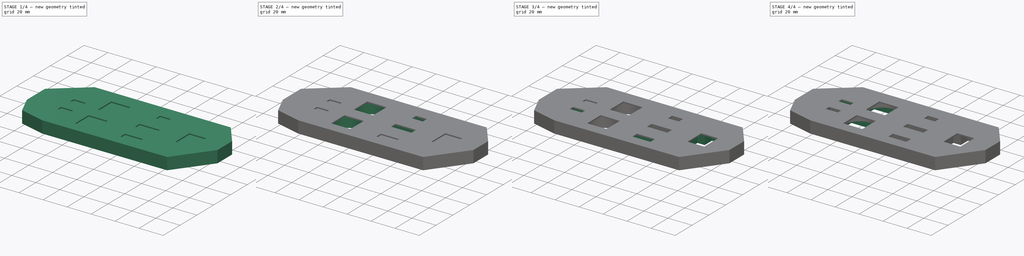
[diagram: build sequence overview — one tinted view per stage of 4, left to right]
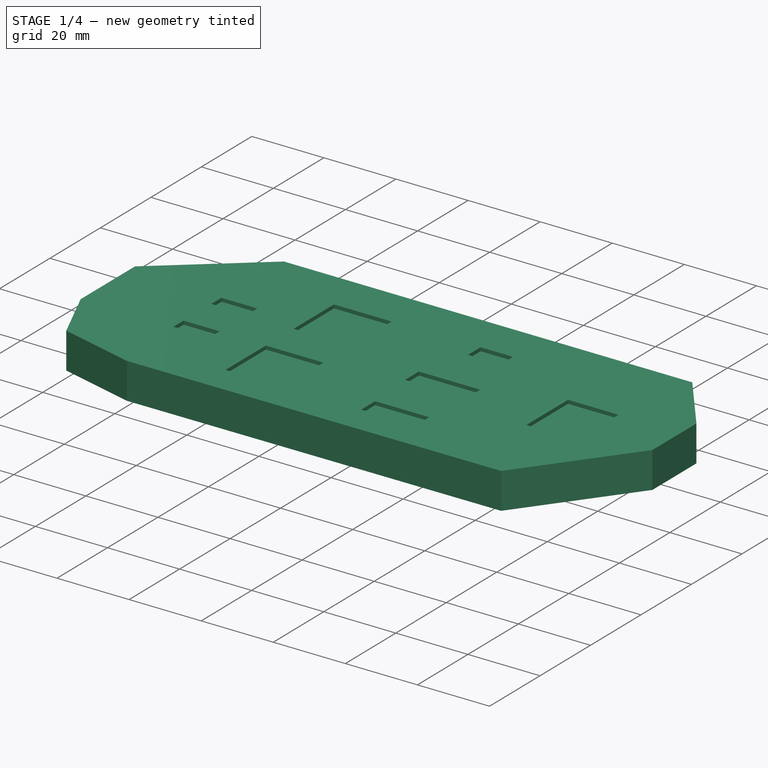
[diagram: stage 1 of 4 — iso view after this stage's code; geometry added in this stage tinted green]
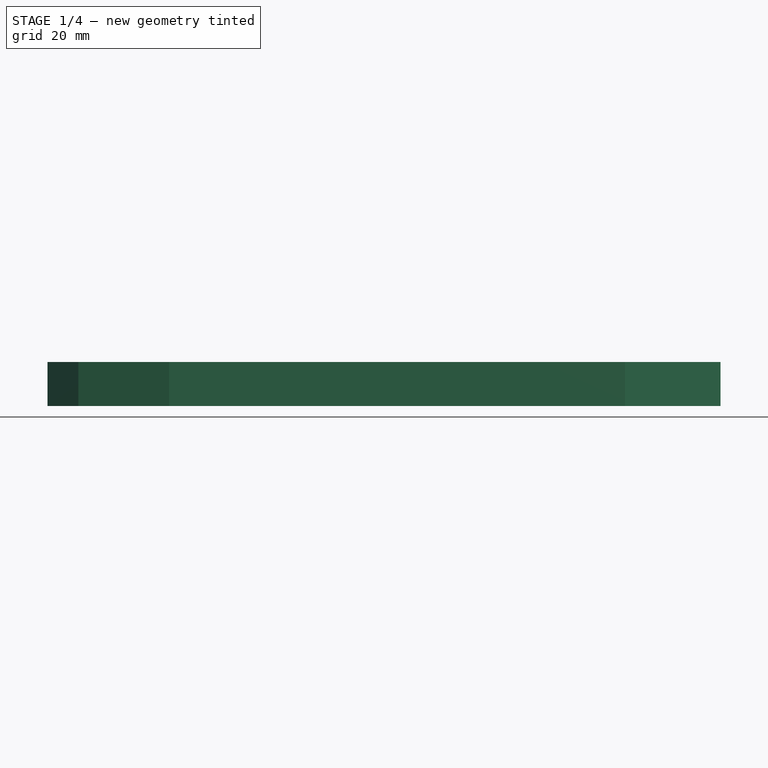
[diagram: stage 1 of 4 — front view after this stage's code; geometry added in this stage tinted green]
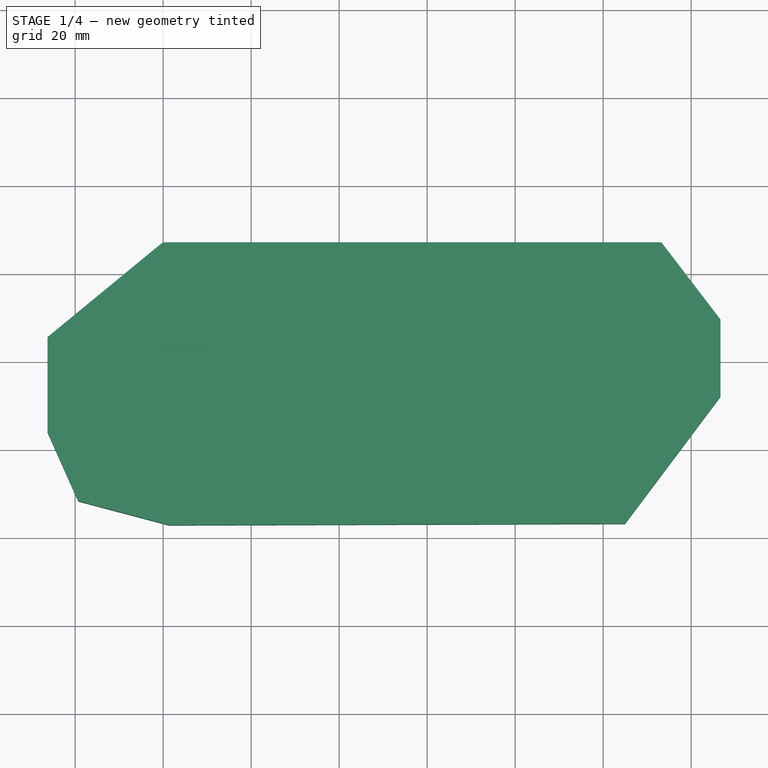
[diagram: stage 1 of 4 — top view after this stage's code; geometry added in this stage tinted green]
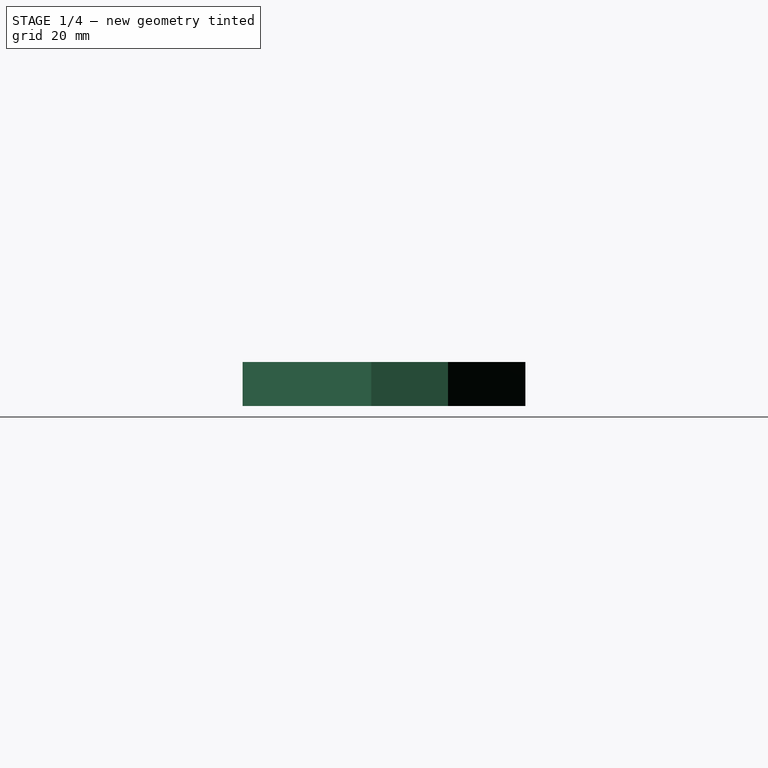
[diagram: stage 1 of 4 — right view after this stage's code; geometry added in this stage tinted green]
FCSTD DOCUMENT  (FreeCAD 2021.717R24301 +3842 (Git))
Label: IO Shield 1-IO ShieldPlate-rev8
License: All rights reserved
LicenseURL: http://en.wikipedia.org/wiki/All_rights_reserved
objects: Sketcher::SketchObject×10, PartDesign::Pocket×9, PartDesign::Pad×1, PartDesign::Body×1, App::Part×1
note: 41 computed .brp shape members not serialized (recipe doc carries the construction recipe); baked Part::Feature solids carry a one-line shape summary decoded from their .brp

FEATURE [Sketcher::SketchObject] Sketch
  FullyConstrained = true
  MapMode = 2
  Support = -> [XY_Plane]
  sketch-geometry (10):
    g0: LineSegment StartX=113.242 StartY=7.13634 StartZ=0 EndX=-0.047754 EndY=7.13634 EndZ=0
    g1: LineSegment StartX=-0.047754 StartY=7.13634 StartZ=0 EndX=-26.2823 EndY=-14.4283 EndZ=0
    g2: LineSegment StartX=-19.2631 StartY=-51.6818 StartZ=0 EndX=1.36096 EndY=-57.1386 EndZ=0
    g3: LineSegment StartX=1.36096 StartY=-57.1386 StartZ=0 EndX=104.98 EndY=-56.818 EndZ=0
    g4: LineSegment StartX=104.98 StartY=-56.818 StartZ=0 EndX=126.693 EndY=-27.8897 EndZ=0
    g5: LineSegment StartX=126.693 StartY=-27.8897 StartZ=0 EndX=126.693 EndY=-10.4497 EndZ=0
    g6: GeomPoint [constr] X=-19.2631 Y=-51.6818 Z=0
    g7: LineSegment StartX=-26.2823 StartY=-35.9683 StartZ=0 EndX=-19.2631 EndY=-51.6818 EndZ=0
    g8: LineSegment StartX=113.242 StartY=7.13634 StartZ=0 EndX=126.693 EndY=-10.4497 EndZ=0
    g9: LineSegment StartX=-26.2823 StartY=-14.4283 StartZ=0 EndX=-26.2823 EndY=-35.9683 EndZ=0
  constraints (29):
    c: Horizontal(g0)
    c: Coincident(g3,g2)
    c: Coincident(g4,g3)
    c: Coincident(g5,g4)
    c: Distance(g3) = 103.62
    c: Distance(g4) = 36.17
    c: Coincident(g0,g1)
    c: DistanceX(g0) = -0.047754
    c: DistanceY(g0) = 7.13634
    c: Angle(g1,g0) = 2.45358
    c: Angle(g5,g4) = 2.49774
    c: PointOnObject(g6,g2)
    c: Coincident(g7,g6)
    c: PointOnObject(g2,g7)
    c: Coincident(g0,g8)
    c: Coincident(g5,g8)
    c: Angle(g2,g7) = 2.24955
    c: Angle(g7,g1) = 1.8387
    c: Distance(g8) = 22.14
    c: Distance(g5) = 17.44
    c: Angle(g8,g5) = 2.48866
    c: DistanceX(g0,g0) = 113.29
    c: Angle(g8) = -0.917869
    c: Vertical(g9)
    c: Coincident(g1,g9)
    c: Coincident(g7,g9)
    c: Distance(g9) = 21.54
    c: Distance(g1) = 33.96
    c: Distance(g7) = 17.21
FEATURE [PartDesign::Pad] Pad  label="Plate"
  ClaimChildren = false
  Direction = (1,1,1)
  Fit = 0
  FitJoin = 0
  InnerFit = 0
  InnerFitJoin = 0
  InnerTaperAngle = 0
  InnerTaperAngleRev = 0
  Length = 10
  Length2 = 100
  Linearize = true
  NewSolid = false
  Profile = -> Sketch
  Suppress = false
  Type = 0
  _ProfileBasedVersion = 1
FEATURE [Sketcher::SketchObject] Sketch001
  FullyConstrained = true
  MapMode = 5
  Placement = pos=(0,0,10) rot=(0,0,1;0rad)
  Support = -> [Pad]
  sketch-geometry (32):
    g0: LineSegment StartX=-0.5 StartY=-17 StartZ=0 EndX=9.5 EndY=-17 EndZ=0
    g1: LineSegment StartX=9.5 StartY=-17 StartZ=0 EndX=9.5 EndY=-21 EndZ=0
    g2: LineSegment StartX=9.5 StartY=-21 StartZ=0 EndX=-0.5 EndY=-21 EndZ=0
    g3: LineSegment StartX=-0.5 StartY=-21 StartZ=0 EndX=-0.5 EndY=-17 EndZ=0
    g4: LineSegment StartX=-0.5 StartY=-32 StartZ=0 EndX=9.5 EndY=-32 EndZ=0
    g5: LineSegment StartX=9.5 StartY=-32 StartZ=0 EndX=9.5 EndY=-36 EndZ=0
    g6: LineSegment StartX=9.5 StartY=-36 StartZ=0 EndX=-0.5 EndY=-36 EndZ=0
    g7: LineSegment StartX=-0.5 StartY=-36 StartZ=0 EndX=-0.5 EndY=-32 EndZ=0
    g8: LineSegment StartX=60 StartY=-42.5 StartZ=0 EndX=75 EndY=-42.5 EndZ=0
    g9: LineSegment StartX=60 StartY=-42.5 StartZ=0 EndX=60 EndY=-48 EndZ=0
    g10: LineSegment StartX=75 StartY=-42.5 StartZ=0 EndX=75 EndY=-48 EndZ=0
    g11: LineSegment StartX=60 StartY=-48 StartZ=0 EndX=75 EndY=-48 EndZ=0
    g12: LineSegment StartX=63 StartY=-5 StartZ=0 EndX=72 EndY=-5 EndZ=0
    g13: LineSegment StartX=72 StartY=-5 StartZ=0 EndX=72 EndY=-10 EndZ=0
    g14: LineSegment StartX=72 StartY=-10 StartZ=0 EndX=63 EndY=-10 EndZ=0
    g15: LineSegment StartX=63 StartY=-10 StartZ=0 EndX=63 EndY=-5 EndZ=0
    g16: LineSegment StartX=95.5 StartY=-16.75 StartZ=0 EndX=109.5 EndY=-16.75 EndZ=0
    g17: LineSegment StartX=109.5 StartY=-16.75 StartZ=0 EndX=109.5 EndY=-33.25 EndZ=0
    g18: LineSegment StartX=109.5 StartY=-33.25 StartZ=0 EndX=95.5 EndY=-33.25 EndZ=0
    g19: LineSegment StartX=95.5 StartY=-33.25 StartZ=0 EndX=95.5 EndY=-16.75 EndZ=0
    g20: LineSegment StartX=22.5 StartY=-5.25 StartZ=0 EndX=38.5 EndY=-5.25 EndZ=0
    g21: LineSegment StartX=38.5 StartY=-5.25 StartZ=0 EndX=38.5 EndY=-21.25 EndZ=0
    g22: LineSegment StartX=38.5 StartY=-21.25 StartZ=0 EndX=22.5 EndY=-21.25 EndZ=0
    g23: LineSegment StartX=22.5 StartY=-21.25 StartZ=0 EndX=22.5 EndY=-5.25 EndZ=0
    g24: LineSegment StartX=22.5 StartY=-32.25 StartZ=0 EndX=38.5 EndY=-32.25 EndZ=0
    g25: LineSegment StartX=38.5 StartY=-32.25 StartZ=0 EndX=38.5 EndY=-48.25 EndZ=0
    g26: LineSegment StartX=38.5 StartY=-48.25 StartZ=0 EndX=22.5 EndY=-48.25 EndZ=0
    g27: LineSegment StartX=22.5 StartY=-48.25 StartZ=0 EndX=22.5 EndY=-32.25 EndZ=0
    g28: LineSegment StartX=59 StartY=-23.75 StartZ=0 EndX=76 EndY=-23.75 EndZ=0
    g29: LineSegment StartX=76 StartY=-23.75 StartZ=0 EndX=76 EndY=-29.25 EndZ=0
    g30: LineSegment StartX=76 StartY=-29.25 StartZ=0 EndX=59 EndY=-29.25 EndZ=0
    g31: LineSegment StartX=59 StartY=-29.25 StartZ=0 EndX=59 EndY=-23.75 EndZ=0
  constraints (96):
    c: Coincident(g0,g1)
    c: Coincident(g1,g2)
    c: Coincident(g2,g3)
    c: Coincident(g3,g0)
    c: Horizontal(g0)
    c: Horizontal(g2)
    c: Vertical(g1)
    c: Vertical(g3)
    c: DistanceX(g0,g0) = 10
    c: DistanceY(g3,g3) = 4
    c: DistanceX(g0) = -0.5
    c: DistanceY(g0) = -17
    c: Coincident(g4,g5)
    c: Coincident(g5,g6)
    c: Coincident(g6,g7)
    c: Coincident(g7,g4)
    c: Horizontal(g4)
    c: Horizontal(g6)
    c: Vertical(g5)
    c: Vertical(g7)
    c: DistanceX(g4) = -0.5
    c: DistanceY(g4) = -32
    c: Horizontal(g8)
    c: DistanceX(g8,g8) = 15
    c: Coincident(g9,g8)
    c: Vertical(g9)
    c: DistanceY(g9,g9) = 5.5
    c: Coincident(g10,g8)
    c: Equal(g10,g9)
    c: Vertical(g10)
    c: Coincident(g11,g9)
    c: Coincident(g11,g10)
    c: DistanceX(g8) = 60
    c: DistanceY(g8) = -42.5
    c: Coincident(g12,g13)
    c: Coincident(g13,g14)
    c: Coincident(g14,g15)
    c: Coincident(g15,g12)
    c: Horizontal(g12)
    c: Horizontal(g14)
    c: Vertical(g13)
    c: Vertical(g15)
    c: DistanceX(g12,g12) = 9
    c: DistanceY(g13,g13) = 5
    c: DistanceX(g12) = 63
    c: DistanceY(g12) = -5
    c: Coincident(g16,g17)
    c: Coincident(g17,g18)
    c: Coincident(g18,g19)
    c: Coincident(g19,g16)
    c: Horizontal(g16)
    c: Horizontal(g18)
    c: Vertical(g17)
    c: Vertical(g19)
    c: DistanceX(g16,g16) = 14
    c: DistanceY(g19,g19) = 16.5
    c: DistanceX(g16) = 95.5
    c: DistanceY(g16) = -16.75
    c: Coincident(g20,g21)
    c: Coincident(g21,g22)
    c: Coincident(g22,g23)
    c: Coincident(g23,g20)
    c: Horizontal(g20)
    c: Horizontal(g22)
    c: Vertical(g21)
    c: Vertical(g23)
    c: DistanceX(g22,g22) = 16
    c: DistanceY(g21,g21) = 16
    c: Coincident(g24,g25)
    c: Coincident(g25,g26)
    c: Coincident(g26,g27)
    c: Coincident(g27,g24)
    c: Horizontal(g24)
    c: Horizontal(g26)
    c: Vertical(g25)
    c: Vertical(g27)
    c: DistanceX(g24,g24) = 16
    c: DistanceY(g25,g25) = 16
    c: DistanceX(g24) = 22.5
    c: DistanceY(g24) = -32.25
    c: DistanceX(g20) = 22.5
    c: DistanceY(g20) = -5.25
    c: Coincident(g28,g29)
    c: Coincident(g29,g30)
    c: Coincident(g30,g31)
    c: Coincident(g31,g28)
    c: Horizontal(g28)
    c: Horizontal(g30)
    c: Vertical(g29)
    c: Vertical(g31)
    c: DistanceX(g28,g28) = 17
    c: DistanceY(g31,g31) = 5.5
    c: DistanceX(g28) = 59
    c: DistanceY(g28) = -23.75
    c: DistanceX(g4,g4) = 10
    c: Equal(g3,g5)
FEATURE [PartDesign::Pocket] Pocket  label="Port Holes"
  BaseFeature = -> Pad
  ClaimChildren = false
  Fit = 0
  FitJoin = 0
  InnerFit = 0
  InnerFitJoin = 0
  InnerTaperAngle = 0
  InnerTaperAngleRev = 0
  Length = 1
  Length2 = 100
  Linearize = true
  NewSolid = false
  Profile = -> Sketch001
  Suppress = false
  Type = 0
  _ProfileBasedVersion = 1
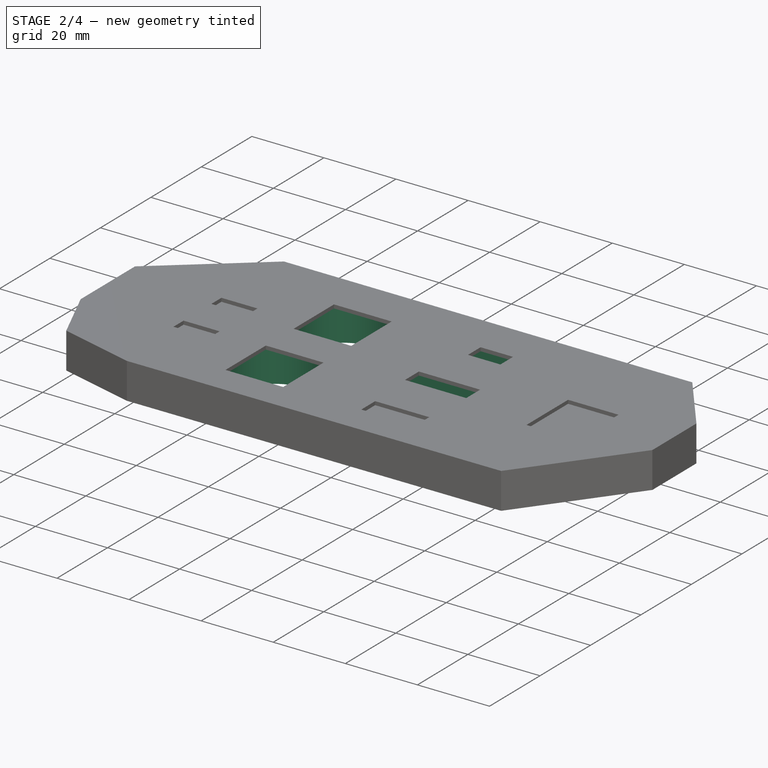
[diagram: stage 2 of 4 — iso view after this stage's code; geometry added in this stage tinted green]
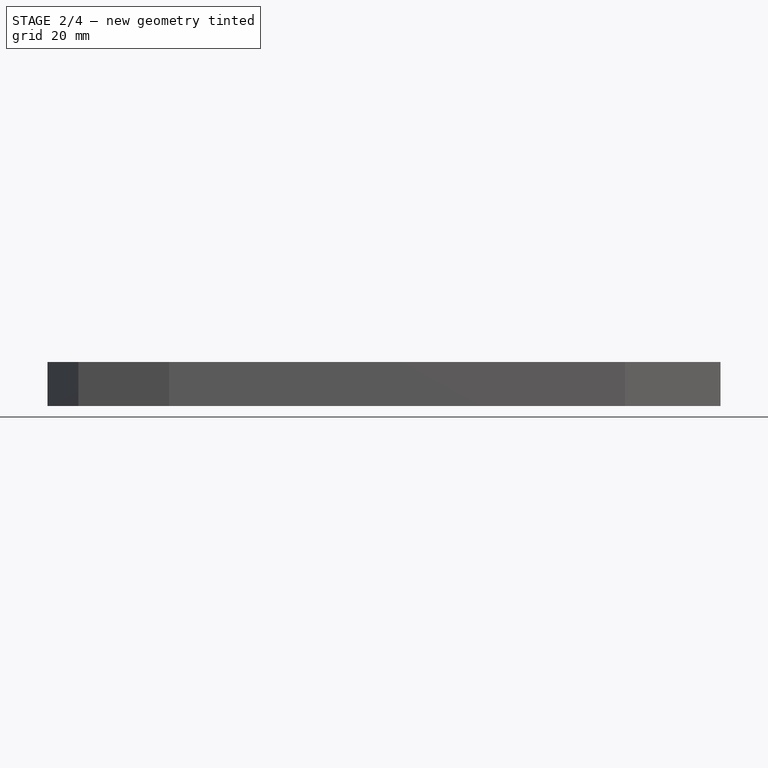
[diagram: stage 2 of 4 — front view after this stage's code; geometry added in this stage tinted green]
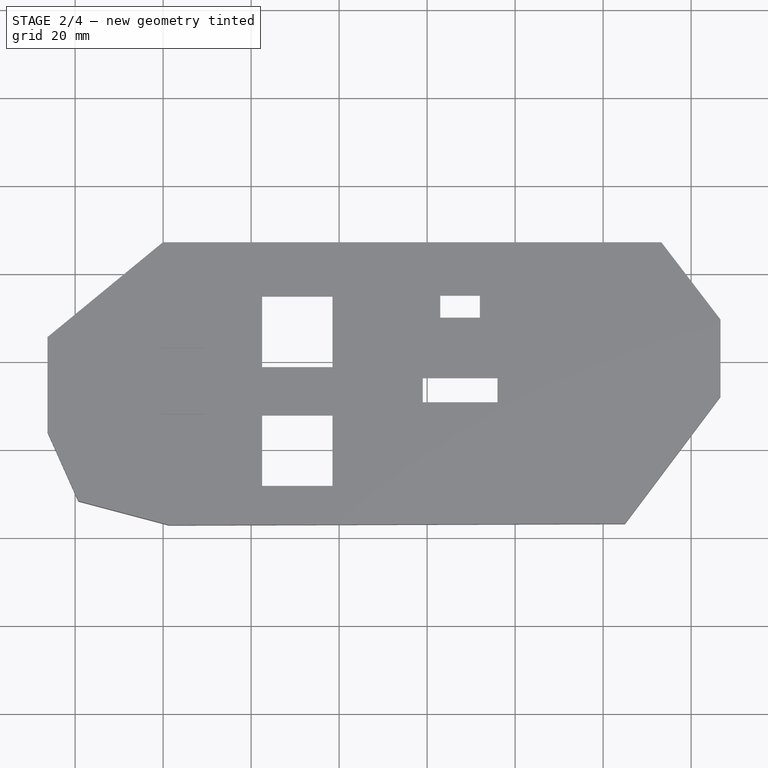
[diagram: stage 2 of 4 — top view after this stage's code; geometry added in this stage tinted green]
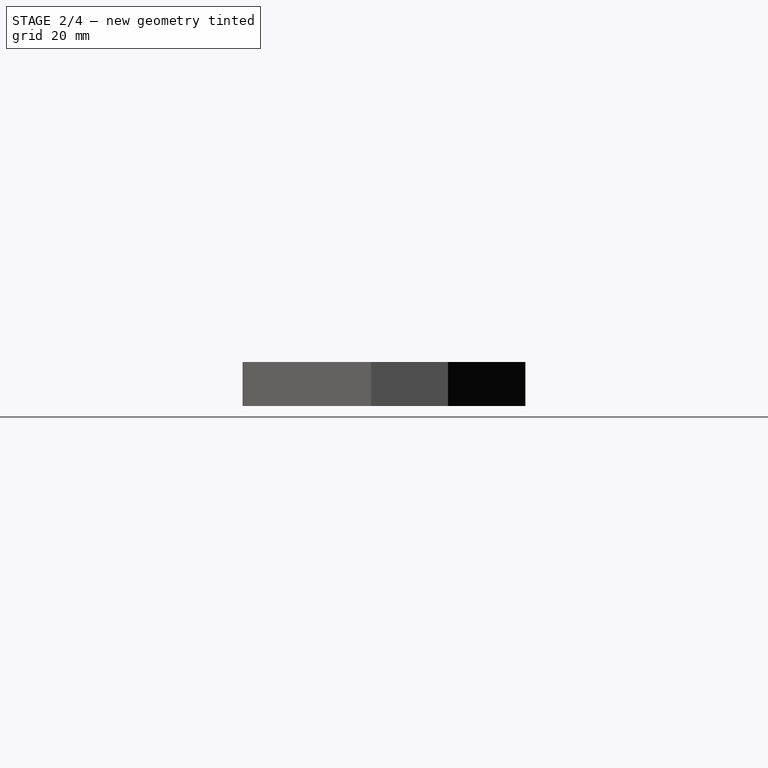
[diagram: stage 2 of 4 — right view after this stage's code; geometry added in this stage tinted green]
FEATURE [Sketcher::SketchObject] Sketch002  label="USB A"
  FullyConstrained = true
  MapMode = 5
  Placement = pos=(0,0,0) rot=(1,0,0;3.14159rad)
  Support = -> [Pocket]
  sketch-geometry (2):
    g0: Circle CenterX=30.5 CenterY=40.25 CenterZ=0 NormalX=0 NormalY=0 NormalZ=1 AngleXU=0 Radius=12
    g1: Circle CenterX=30.5 CenterY=13.25 CenterZ=0 NormalX=0 NormalY=0 NormalZ=1 AngleXU=0 Radius=12
  constraints (6):
    c: Diameter(g0) = 24
    c: DistanceX(g0) = 30.5
    c: DistanceY(g0) = 40.25
    c: Diameter(g1) = 24
    c: DistanceX(g1) = 30.5
    c: DistanceY(g1) = 13.25
FEATURE [PartDesign::Pocket] Pocket001  label="USB A Back Hole"
  BaseFeature = -> Pocket
  ClaimChildren = false
  Fit = 0
  FitJoin = 0
  InnerFit = 0
  InnerFitJoin = 0
  InnerTaperAngle = 0
  InnerTaperAngleRev = 0
  Length = 0
  Length2 = 100
  Linearize = true
  NewSolid = false
  Profile = -> Sketch002
  Suppress = false
  Type = 3
  UpToFace = -> Pocket [Face44]
  _ProfileBasedVersion = 1
FEATURE [Sketcher::SketchObject] Sketch003  label="MiniDP Back Hole"
  FullyConstrained = true
  MapMode = 5
  Placement = pos=(0,0,0) rot=(1,0,0;3.14159rad)
  Support = -> [Pocket001]
  sketch-geometry (4):
    g0: LineSegment StartX=46.9815 StartY=17 StartZ=0 EndX=87.9815 EndY=17 EndZ=0
    g1: LineSegment StartX=87.9815 StartY=17 StartZ=0 EndX=87.9815 EndY=-2 EndZ=0
    g2: LineSegment StartX=87.9815 StartY=-2 StartZ=0 EndX=46.9815 EndY=-2 EndZ=0
    g3: LineSegment StartX=46.9815 StartY=-2 StartZ=0 EndX=46.9815 EndY=17 EndZ=0
  constraints (12):
    c: Coincident(g0,g1)
    c: Coincident(g1,g2)
    c: Coincident(g2,g3)
    c: Coincident(g3,g0)
    c: Horizontal(g0)
    c: Horizontal(g2)
    c: Vertical(g1)
    c: Vertical(g3)
    c: DistanceY(g1,g1) = 19
    c: DistanceX(g0,g0) = 41
    c: DistanceX(g0) = 46.9815
    c: DistanceY(g0) = 17
FEATURE [PartDesign::Pocket] Pocket002  label="MiniDP Back Hole Pocket"
  BaseFeature = -> Pocket001
  ClaimChildren = false
  Fit = 0
  FitJoin = 0
  InnerFit = 0
  InnerFitJoin = 0
  InnerTaperAngle = 0
  InnerTaperAngleRev = 0
  Length = 0
  Length2 = 100
  Linearize = true
  NewSolid = false
  Profile = -> Sketch003
  Suppress = false
  Type = 2
  _ProfileBasedVersion = 1
FEATURE [Sketcher::SketchObject] Sketch004  label="DisplayPort Back Hole"
  FullyConstrained = true
  MapMode = 5
  Placement = pos=(0,0,0) rot=(1,0,0;3.14159rad)
  Support = -> [Pocket002]
  sketch-geometry (4):
    g0: LineSegment StartX=50.0016 StartY=32.7369 StartZ=0 EndX=85.0016 EndY=32.7369 EndZ=0
    g1: LineSegment StartX=85.0016 StartY=32.7369 StartZ=0 EndX=85.0016 EndY=20.2369 EndZ=0
    g2: LineSegment StartX=85.0016 StartY=20.2369 StartZ=0 EndX=50.0016 EndY=20.2369 EndZ=0
    g3: LineSegment StartX=50.0016 StartY=20.2369 StartZ=0 EndX=50.0016 EndY=32.7369 EndZ=0
  constraints (12):
    c: Coincident(g0,g1)
    c: Coincident(g1,g2)
    c: Coincident(g2,g3)
    c: Coincident(g3,g0)
    c: Horizontal(g0)
    c: Horizontal(g2)
    c: Vertical(g1)
    c: Vertical(g3)
    c: DistanceY(g1,g1) = 12.5
    c: DistanceX(g0,g0) = 35
    c: DistanceX(g0) = 50.0016
    c: DistanceY(g0) = 32.7369
FEATURE [PartDesign::Pocket] Pocket003  label="DisplayPort Back Hole Pocket"
  BaseFeature = -> Pocket002
  ClaimChildren = false
  Fit = 0
  FitJoin = 0
  InnerFit = 0
  InnerFitJoin = 0
  InnerTaperAngle = 0
  InnerTaperAngleRev = 0
  Length = 0
  Length2 = 100
  Linearize = true
  NewSolid = false
  Profile = -> Sketch004
  Suppress = false
  Type = 2
  _ProfileBasedVersion = 1
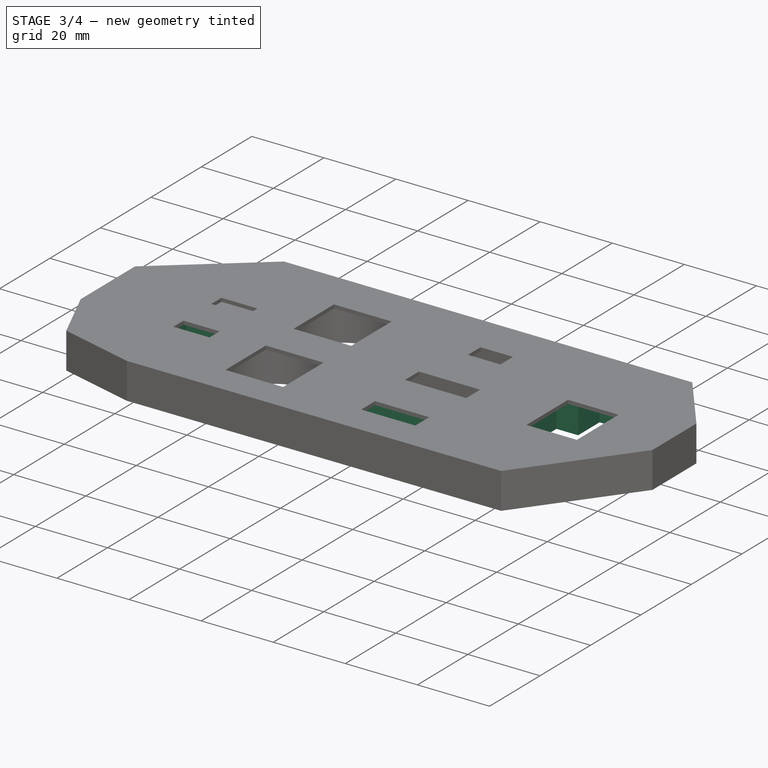
[diagram: stage 3 of 4 — iso view after this stage's code; geometry added in this stage tinted green]
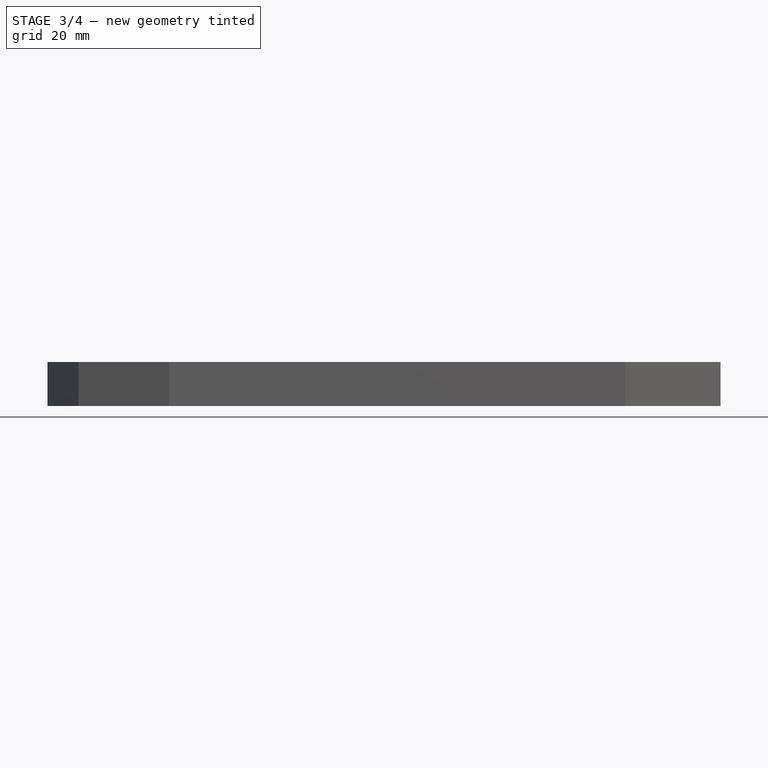
[diagram: stage 3 of 4 — front view after this stage's code; geometry added in this stage tinted green]
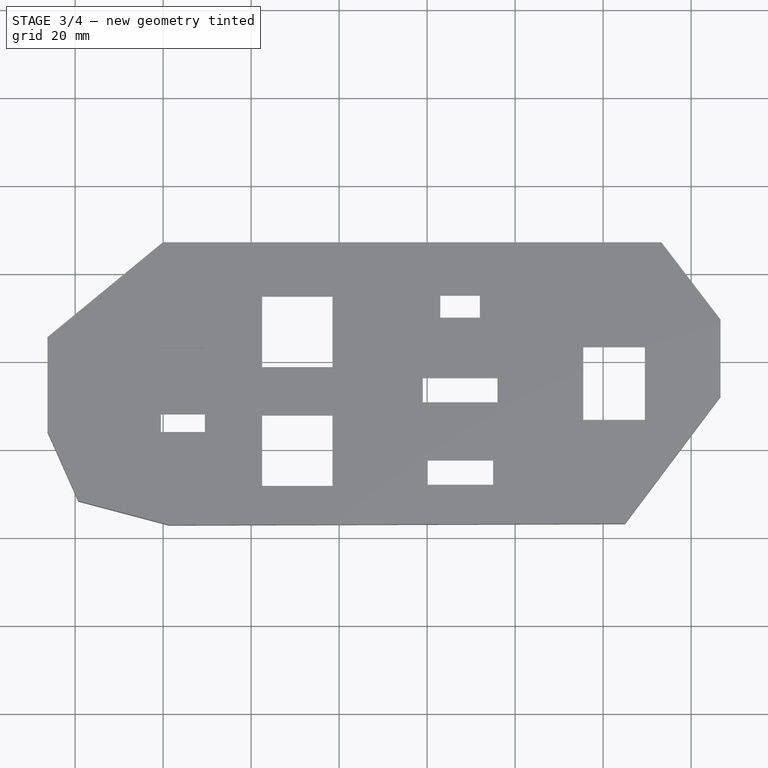
[diagram: stage 3 of 4 — top view after this stage's code; geometry added in this stage tinted green]
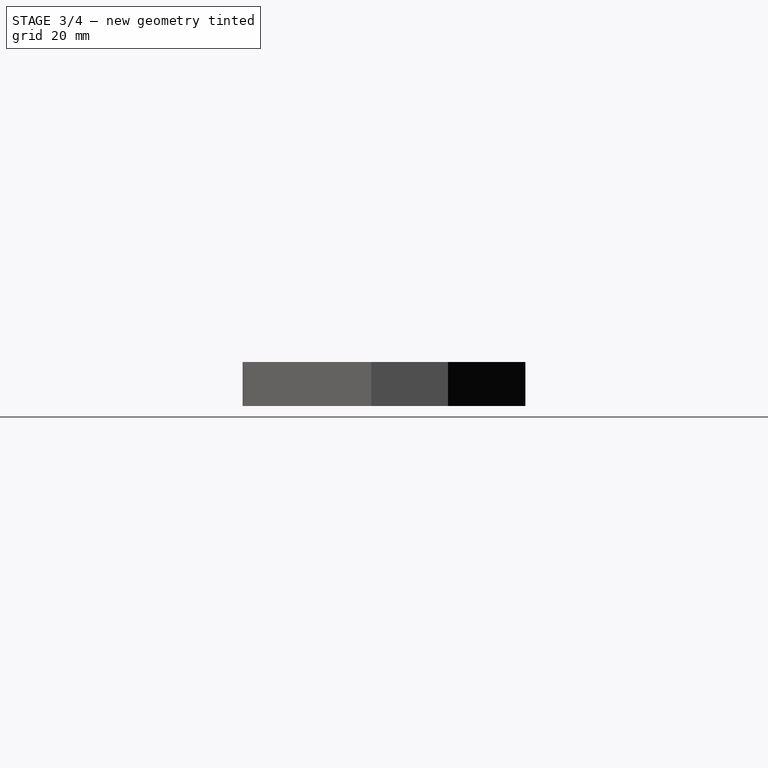
[diagram: stage 3 of 4 — right view after this stage's code; geometry added in this stage tinted green]
FEATURE [Sketcher::SketchObject] Sketch005  label="HDMI Back Hole"
  FullyConstrained = true
  MapMode = 5
  Placement = pos=(0,0,0) rot=(1,0,0;3.14159rad)
  Support = -> [Pocket003]
  sketch-geometry (4):
    g0: LineSegment StartX=46.9865 StartY=55.7596 StartZ=0 EndX=87.9865 EndY=55.7596 EndZ=0
    g1: LineSegment StartX=87.9865 StartY=55.7596 StartZ=0 EndX=87.9865 EndY=34.7596 EndZ=0
    g2: LineSegment StartX=87.9865 StartY=34.7596 StartZ=0 EndX=46.9865 EndY=34.7596 EndZ=0
    g3: LineSegment StartX=46.9865 StartY=34.7596 StartZ=0 EndX=46.9865 EndY=55.7596 EndZ=0
  constraints (12):
    c: Coincident(g0,g1)
    c: Coincident(g1,g2)
    c: Coincident(g2,g3)
    c: Coincident(g3,g0)
    c: Horizontal(g0)
    c: Horizontal(g2)
    c: Vertical(g1)
    c: Vertical(g3)
    c: DistanceY(g1,g1) = 21
    c: DistanceX(g0,g0) = 41
    c: DistanceX(g0) = 46.9865
    c: DistanceY(g0) = 55.7596
FEATURE [PartDesign::Pocket] Pocket004  label="HDMI Back Hole Pocket"
  BaseFeature = -> Pocket003
  ClaimChildren = false
  Fit = 0
  FitJoin = 0
  InnerFit = 0
  InnerFitJoin = 0
  InnerTaperAngle = 0
  InnerTaperAngleRev = 0
  Length = 0
  Length2 = 100
  Linearize = true
  NewSolid = false
  Profile = -> Sketch005
  Suppress = false
  Type = 2
  _ProfileBasedVersion = 1
FEATURE [Sketcher::SketchObject] Sketch006  label="USB-C 1 Hole"
  FullyConstrained = true
  MapMode = 5
  Placement = pos=(0,0,0) rot=(1,0,0;3.14159rad)
  Support = -> [Pocket004]
  sketch-geometry (4):
    g0: LineSegment StartX=-2.49727 StartY=40.0112 StartZ=0 EndX=11.5027 EndY=40.0112 EndZ=0
    g1: LineSegment StartX=11.5027 StartY=40.0112 StartZ=0 EndX=11.5027 EndY=28.0112 EndZ=0
    g2: LineSegment StartX=11.5027 StartY=28.0112 StartZ=0 EndX=-2.49727 EndY=28.0112 EndZ=0
    g3: LineSegment StartX=-2.49727 StartY=28.0112 StartZ=0 EndX=-2.49727 EndY=40.0112 EndZ=0
  constraints (12):
    c: Coincident(g0,g1)
    c: Coincident(g1,g2)
    c: Coincident(g2,g3)
    c: Coincident(g3,g0)
    c: Horizontal(g0)
    c: Horizontal(g2)
    c: Vertical(g1)
    c: Vertical(g3)
    c: DistanceX(g0,g0) = 14
    c: DistanceY(g1,g1) = 12
    c: DistanceX(g0) = -2.49727
    c: DistanceY(g0) = 40.0112
FEATURE [PartDesign::Pocket] Pocket005  label="USB-C 1 Hole Pocket"
  BaseFeature = -> Pocket004
  ClaimChildren = false
  Fit = 0
  FitJoin = 0
  InnerFit = 0
  InnerFitJoin = 0
  InnerTaperAngle = 0
  InnerTaperAngleRev = 0
  Length = 0
  Length2 = 100
  Linearize = true
  NewSolid = false
  Profile = -> Sketch006
  Suppress = false
  Type = 2
  _ProfileBasedVersion = 1
FEATURE [Sketcher::SketchObject] Sketch009  label="Ethernet Hole"
  FullyConstrained = true
  MapMode = 5
  Placement = pos=(0,0,0) rot=(1,0,0;3.14159rad)
  Support = -> [Pocket005]
  sketch-geometry (12):
    g0: LineSegment StartX=90 StartY=36.5 StartZ=0 EndX=96 EndY=36.5 EndZ=0
    g1: LineSegment StartX=113 StartY=36.5 StartZ=0 EndX=113 EndY=13.5 EndZ=0
    g2: LineSegment StartX=113 StartY=13.5 StartZ=0 EndX=107 EndY=13.5 EndZ=0
    g3: LineSegment StartX=90 StartY=13.5 StartZ=0 EndX=90 EndY=36.5 EndZ=0
    g4: LineSegment StartX=96 StartY=45 StartZ=0 EndX=107 EndY=45 EndZ=0
    g5: LineSegment StartX=107 StartY=45 StartZ=0 EndX=107 EndY=36.5 EndZ=0
    g6: LineSegment StartX=107 StartY=5 StartZ=0 EndX=96 EndY=5 EndZ=0
    g7: LineSegment StartX=96 StartY=5 StartZ=0 EndX=96 EndY=13.5 EndZ=0
    g8: LineSegment StartX=107 StartY=36.5 StartZ=0 EndX=113 EndY=36.5 EndZ=0
    g9: LineSegment StartX=107 StartY=13.5 StartZ=0 EndX=107 EndY=5 EndZ=0
    g10: LineSegment StartX=96 StartY=36.5 StartZ=0 EndX=96 EndY=45 EndZ=0
    g11: LineSegment StartX=96 StartY=13.5 StartZ=0 EndX=90 EndY=13.5 EndZ=0
  constraints (32):
    c: Coincident(g8,g1)
    c: Coincident(g1,g2)
    c: Coincident(g11,g3)
    c: Coincident(g3,g0)
    c: Horizontal(g0)
    c: Horizontal(g2)
    c: Vertical(g1)
    c: Vertical(g3)
    c: DistanceX(g0,g8) = 23
    c: DistanceY(g1,g1) = 23
    c: DistanceX(g0) = 90
    c: DistanceY(g0) = 36.5
    c: Coincident(g4,g5)
    c: Coincident(g9,g6)
    c: Coincident(g6,g7)
    c: Coincident(g10,g4)
    c: Horizontal(g4)
    c: Horizontal(g6)
    c: Vertical(g5)
    c: Vertical(g7)
    c: DistanceY(g9,g5) = 40
    c: DistanceX(g6,g6) = 11
    c: DistanceX(g4) = 96
    c: DistanceY(g4) = 45
    c: Tangent(g0,g8)
    c: Coincident(g5,g8)
    c: Tangent(g5,g9)
    c: Coincident(g10,g0)
    c: Tangent(g7,g10)
    c: Coincident(g2,g9)
    c: Coincident(g11,g7)
    c: Tangent(g2,g11)
FEATURE [Sketcher::SketchObject] Sketch010
  FullyConstrained = true
  MapMode = 5
  Placement = pos=(0,0,0) rot=(1,0,0;3.14159rad)
  Support = -> [Pocket005]
  sketch-geometry (8):
    g0: LineSegment StartX=14.5 StartY=53.5 StartZ=0 EndX=46 EndY=53.5 EndZ=0
    g1: LineSegment StartX=46 StartY=53.5 StartZ=0 EndX=46 EndY=27 EndZ=0
    g2: LineSegment StartX=46 StartY=27 StartZ=0 EndX=14.5 EndY=27 EndZ=0
    g3: LineSegment StartX=14.5 StartY=27 StartZ=0 EndX=14.5 EndY=53.5 EndZ=0
    g4: LineSegment StartX=14.5 StartY=26.5 StartZ=0 EndX=46 EndY=26.5 EndZ=0
    g5: LineSegment StartX=46 StartY=26.5 StartZ=0 EndX=46 EndY=0 EndZ=0
    g6: LineSegment StartX=46 StartY=0 StartZ=0 EndX=14.5 EndY=0 EndZ=0
    g7: LineSegment StartX=14.5 StartY=0 StartZ=0 EndX=14.5 EndY=26.5 EndZ=0
  constraints (24):
    c: Coincident(g0,g1)
    c: Coincident(g1,g2)
    c: Coincident(g2,g3)
    c: Coincident(g3,g0)
    c: Horizontal(g0)
    c: Horizontal(g2)
    c: Vertical(g1)
    c: Vertical(g3)
    c: DistanceX(g0,g0) = 31.5
    c: DistanceX(g0) = 14.5
    c: DistanceY(g0) = 53.5
    c: Coincident(g4,g5)
    c: Coincident(g5,g6)
    c: Coincident(g6,g7)
    c: Coincident(g7,g4)
    c: Horizontal(g4)
    c: Horizontal(g6)
    c: Vertical(g5)
    c: Vertical(g7)
    c: DistanceX(g4,g4) = 31.5
    c: DistanceY(g7,g7) = 26.5
    c: DistanceY(g4) = 26.5
    c: DistanceX(g4) = 14.5
    c: DistanceY(g3,g3) = 26.5
FEATURE [PartDesign::Pocket] Pocket006
  BaseFeature = -> Pocket005
  ClaimChildren = false
  Fit = 0
  FitJoin = 0
  InnerFit = 0
  InnerFitJoin = 0
  InnerTaperAngle = 0
  InnerTaperAngleRev = 0
  Length = 0
  Length2 = 100
  Linearize = true
  NewSolid = false
  Profile = -> Sketch009
  Suppress = false
  Type = 3
  UpToFace = -> Pocket005 [Face69]
  _ProfileBasedVersion = 1
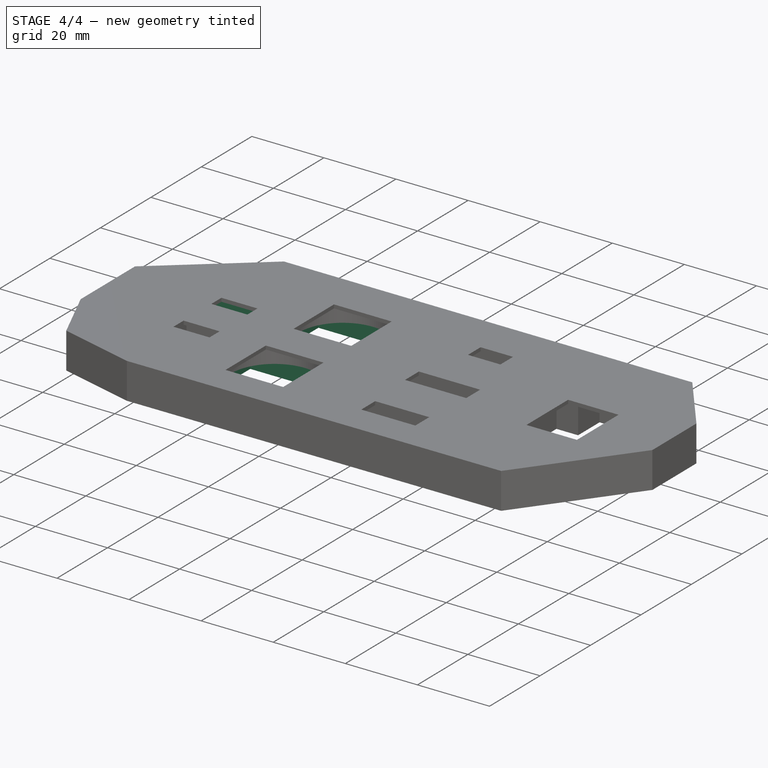
[diagram: stage 4 of 4 — iso view after this stage's code; geometry added in this stage tinted green]
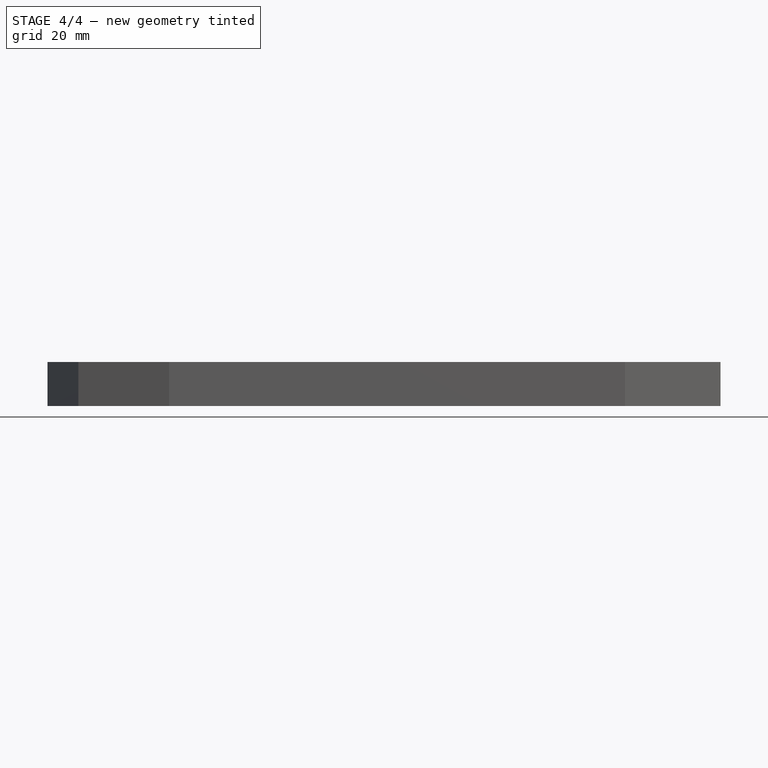
[diagram: stage 4 of 4 — front view after this stage's code; geometry added in this stage tinted green]
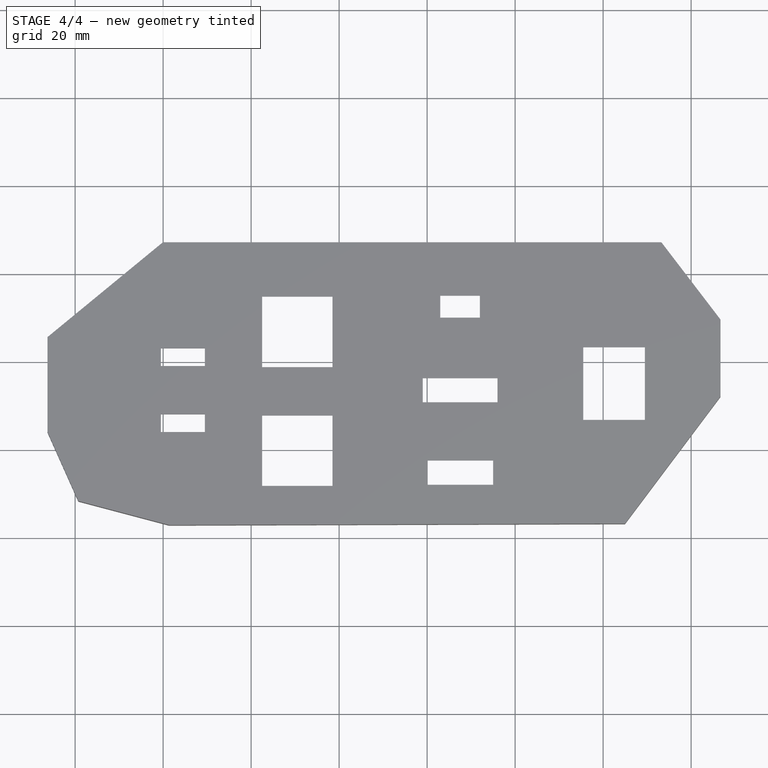
[diagram: stage 4 of 4 — top view after this stage's code; geometry added in this stage tinted green]
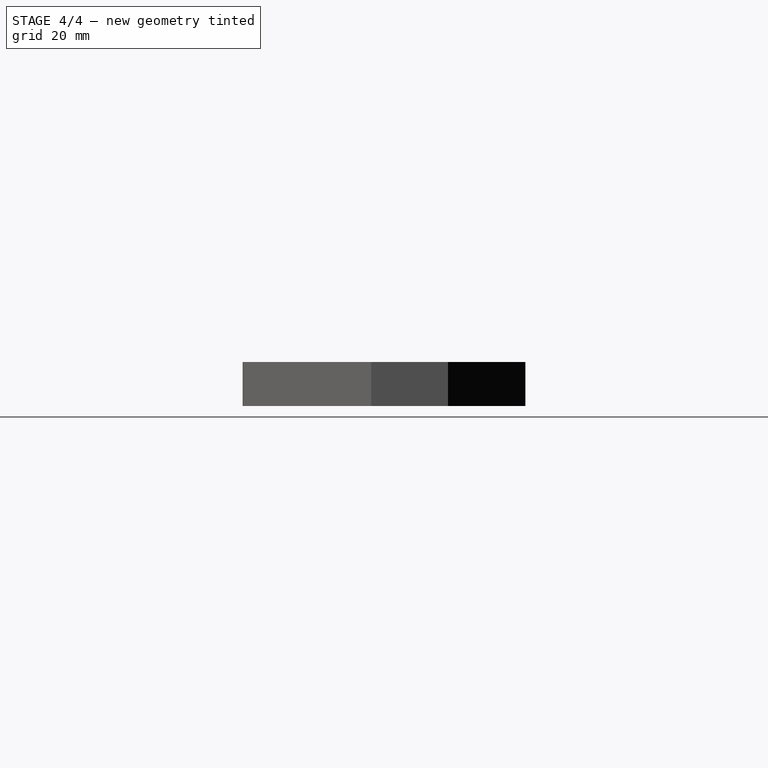
[diagram: stage 4 of 4 — right view after this stage's code; geometry added in this stage tinted green]
FEATURE [PartDesign::Pocket] Pocket007
  BaseFeature = -> Pocket006
  ClaimChildren = false
  Fit = 0
  FitJoin = 0
  InnerFit = 0
  InnerFitJoin = 0
  InnerTaperAngle = 0
  InnerTaperAngleRev = 0
  Length = 0
  Length2 = 100
  Linearize = true
  NewSolid = false
  Offset = -4
  Profile = -> Sketch010
  Suppress = false
  Type = 3
  UpToFace = -> Pocket006 [Face75]
  _ProfileBasedVersion = 1
FEATURE [Sketcher::SketchObject] Sketch011
  FullyConstrained = true
  MapMode = 5
  Placement = pos=(0,0,0) rot=(1,0,0;3.14159rad)
  Support = -> [Pocket007]
  sketch-geometry (4):
    g0: LineSegment StartX=-9 StartY=24 StartZ=0 EndX=18 EndY=24 EndZ=0
    g1: LineSegment StartX=18 StartY=24 StartZ=0 EndX=18 EndY=14 EndZ=0
    g2: LineSegment StartX=18 StartY=14 StartZ=0 EndX=-9 EndY=14 EndZ=0
    g3: LineSegment StartX=-9 StartY=14 StartZ=0 EndX=-9 EndY=24 EndZ=0
  constraints (12):
    c: Coincident(g0,g1)
    c: Coincident(g1,g2)
    c: Coincident(g2,g3)
    c: Coincident(g3,g0)
    c: Horizontal(g0)
    c: Horizontal(g2)
    c: Vertical(g1)
    c: Vertical(g3)
    c: DistanceY(g1,g1) = 10
    c: DistanceX(g0,g0) = 27
    c: DistanceX(g0) = -9
    c: DistanceY(g0) = 24
FEATURE [PartDesign::Pocket] Pocket008
  BaseFeature = -> Pocket007
  ClaimChildren = false
  Fit = 0
  FitJoin = 0
  InnerFit = 0
  InnerFitJoin = 0
  InnerTaperAngle = 0
  InnerTaperAngleRev = 0
  Length = 0
  Length2 = 100
  Linearize = true
  NewSolid = false
  Profile = -> Sketch011
  Suppress = false
  Type = 3
  UpToFace = -> Pocket007 [Face88]
  _ProfileBasedVersion = 1
FEATURE [PartDesign::Body] Body
  AutoGroupSolids = false
  ExportMode = 0
  Group = -> [Sketch,Pad,Sketch001,Pocket,Sketch002,Pocket001,Sketch003,Pocket002,Sketch004,Pocket003,Sketch005,Pocket004,Sketch006,Pocket005,Sketch009,Sketch010,Pocket006,Pocket007,Sketch011,Pocket008]
  Origin = -> Origin001
  Tip = -> Pocket008
  _ExportChildren = -> [Pad,Pocket,Pocket001,Pocket002,Pocket003,Pocket004,Pocket005,Pocket006,Pocket007,Pocket008]
  _GroupVersion = 1
FEATURE [App::Part] Part  label="IO Shield"
  ExportMode = 1
  Group = -> [Body]
  Origin = -> Origin
  _ExportChildren = -> [Body]
  _GroupVersion = 1
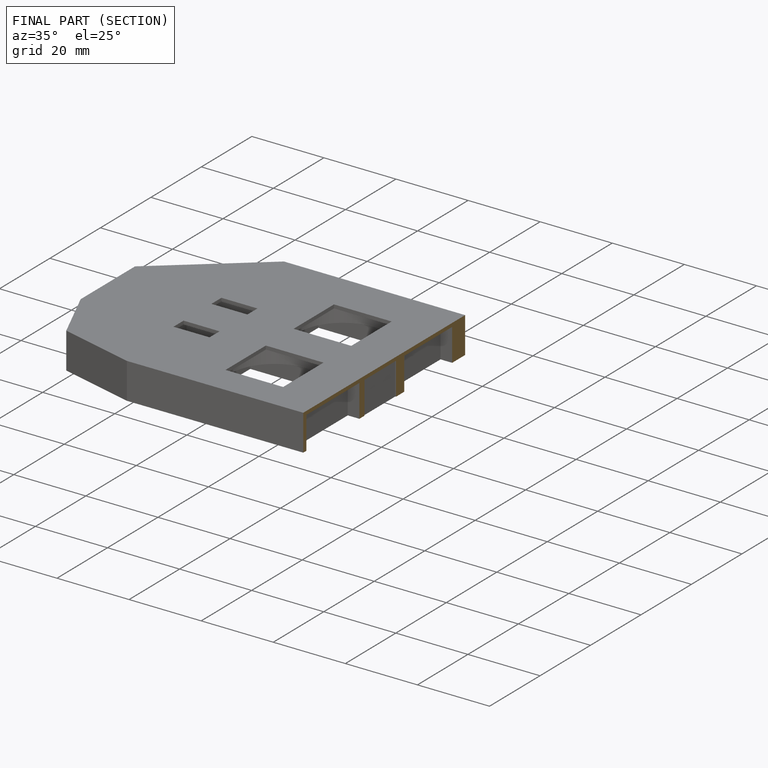
[diagram: finished part — half-section view (interior)]
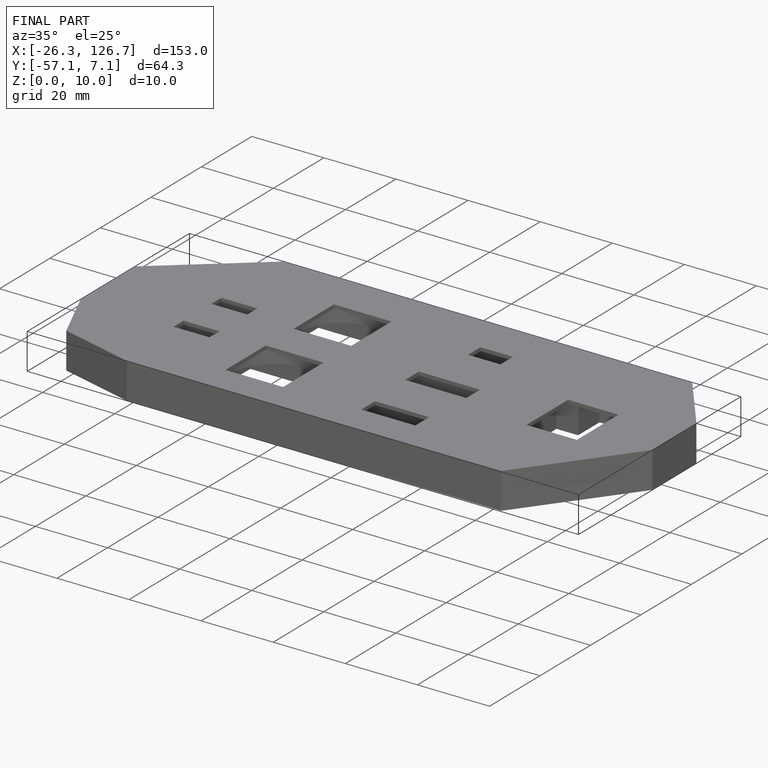
[diagram: finished part — iso view with bounding-box wireframe]
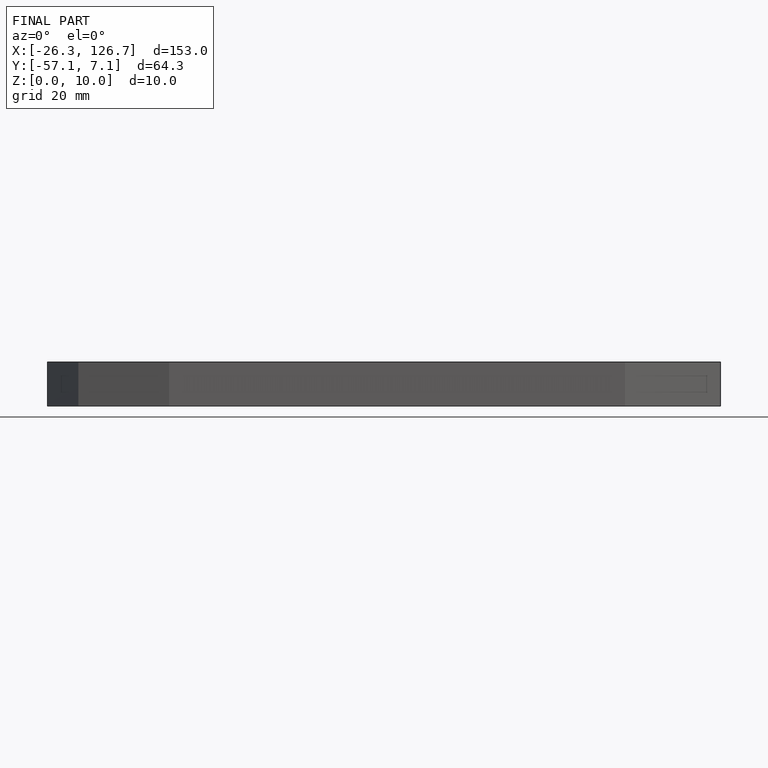
[diagram: finished part — front view with bounding-box wireframe]
